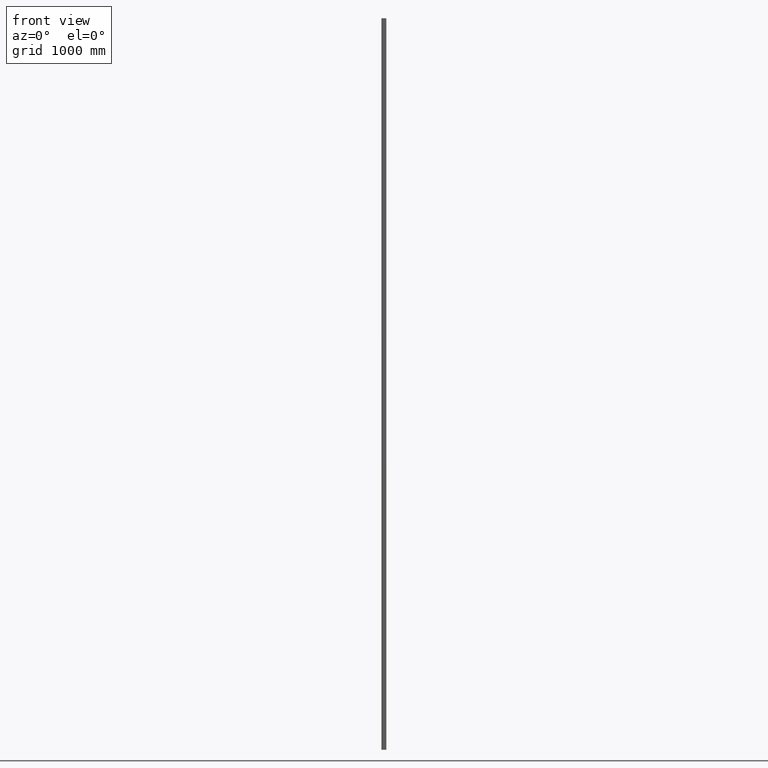
[diagram: clean part render]
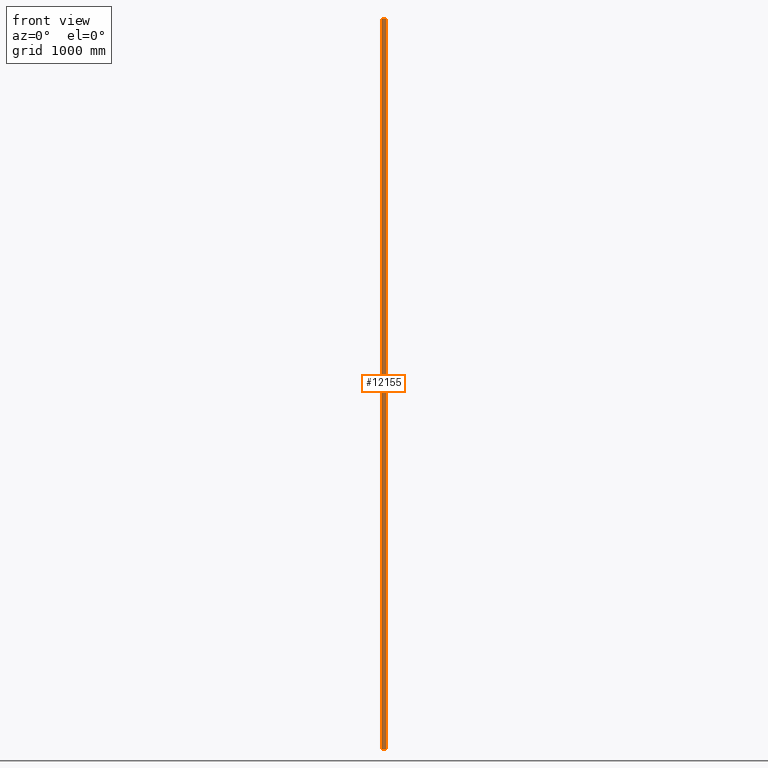
[diagram: same view with one face highlighted and labeled with its STEP entity id]
A machine part, front view. The second image highlights one B-rep face of the part: STEP entity #12155.
In plain terms, the highlighted planar face has unit normal (0, 1, -0).
Its self-contained STEP definition (entity closure, byte-faithful):
#159 = EDGE_CURVE ( 'NONE', #1233, #9795, #4852, .T. ) ;
#890 = CARTESIAN_POINT ( 'NONE',  ( -15.49999999999999289, -20.00000000000000000, -3000.000000000000000 ) ) ;
#996 = CARTESIAN_POINT ( 'NONE',  ( 15.50000000000001421, -19.99999999999999645, 3000.000000000000000 ) ) ;
#1025 = PLANE ( 'NONE',  #9471 ) ;
#1188 = CARTESIAN_POINT ( 'NONE',  ( 15.50000000000001421, -19.99999999999999645, 3000.000000000000000 ) ) ;
#1233 = VERTEX_POINT ( 'NONE', #9826 ) ;
#1238 = CARTESIAN_POINT ( 'NONE',  ( -15.49999999999999289, -20.00000000000000000, -3000.000000000000000 ) ) ;
#1382 = CARTESIAN_POINT ( 'NONE',  ( 15.50000000000001421, -19.99999999999999645, -3000.000000000000000 ) ) ;
#3198 = DIRECTION ( 'NONE',  ( -0.000000000000000000, -0.000000000000000000, -1.000000000000000000 ) ) ;
#3214 = EDGE_CURVE ( 'NONE', #1233, #7421, #5564, .T. ) ;
#3535 = CARTESIAN_POINT ( 'NONE',  ( -15.49999999999999289, -20.00000000000000000, 3000.000000000000000 ) ) ;
#3791 = EDGE_LOOP ( 'NONE', ( #4065, #6777, #4151, #14323 ) ) ;
#3842 = VECTOR ( 'NONE', #3198, 1000.000000000000000 ) ;
#4065 = ORIENTED_EDGE ( 'NONE', *, *, #5188, .T. ) ;
#4151 = ORIENTED_EDGE ( 'NONE', *, *, #3214, .F. ) ;
#4624 = DIRECTION ( 'NONE',  ( 1.000000000000000000, -1.119176436114068839E-16, 0.000000000000000000 ) ) ;
#4852 = LINE ( 'NONE', #9167, #5981 ) ;
#5188 = EDGE_CURVE ( 'NONE', #9795, #14870, #10432, .T. ) ;
#5564 = LINE ( 'NONE', #10602, #7414 ) ;
#5981 = VECTOR ( 'NONE', #8111, 1000.000000000000000 ) ;
#6777 = ORIENTED_EDGE ( 'NONE', *, *, #10428, .F. ) ;
#7400 = LINE ( 'NONE', #996, #3842 ) ;
#7414 = VECTOR ( 'NONE', #14606, 1000.000000000000000 ) ;
#7421 = VERTEX_POINT ( 'NONE', #1188 ) ;
#8111 = DIRECTION ( 'NONE',  ( -0.000000000000000000, -0.000000000000000000, -1.000000000000000000 ) ) ;
#9167 = CARTESIAN_POINT ( 'NONE',  ( -15.49999999999999289, -20.00000000000000000, 3000.000000000000000 ) ) ;
#9438 = DIRECTION ( 'NONE',  ( 1.119176436114068839E-16, 1.000000000000000000, -0.000000000000000000 ) ) ;
#9471 = AXIS2_PLACEMENT_3D ( 'NONE', #3535, #9438, #14290 ) ;
#9795 = VERTEX_POINT ( 'NONE', #1238 ) ;
#9826 = CARTESIAN_POINT ( 'NONE',  ( -15.49999999999999289, -20.00000000000000000, 3000.000000000000000 ) ) ;
#10428 = EDGE_CURVE ( 'NONE', #7421, #14870, #7400, .T. ) ;
#10432 = LINE ( 'NONE', #890, #15151 ) ;
#10602 = CARTESIAN_POINT ( 'NONE',  ( -15.49999999999999289, -20.00000000000000000, 3000.000000000000000 ) ) ;
#11184 = FACE_OUTER_BOUND ( 'NONE', #3791, .T. ) ;
#12155 = ADVANCED_FACE ( 'NONE', ( #11184 ), #1025, .F. ) ;
#14290 = DIRECTION ( 'NONE',  ( -1.000000000000000000, 1.119176436114068839E-16, 0.000000000000000000 ) ) ;
#14323 = ORIENTED_EDGE ( 'NONE', *, *, #159, .T. ) ;
#14606 = DIRECTION ( 'NONE',  ( 1.000000000000000000, -1.119176436114068839E-16, 0.000000000000000000 ) ) ;
#14870 = VERTEX_POINT ( 'NONE', #1382 ) ;
#15151 = VECTOR ( 'NONE', #4624, 1000.000000000000000 ) ;